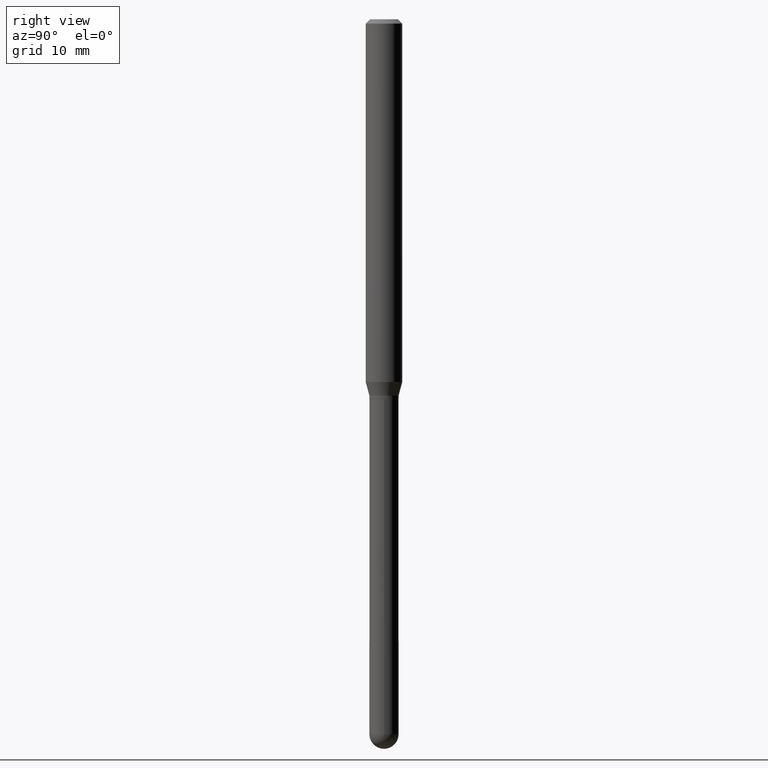
[diagram: clean part render]
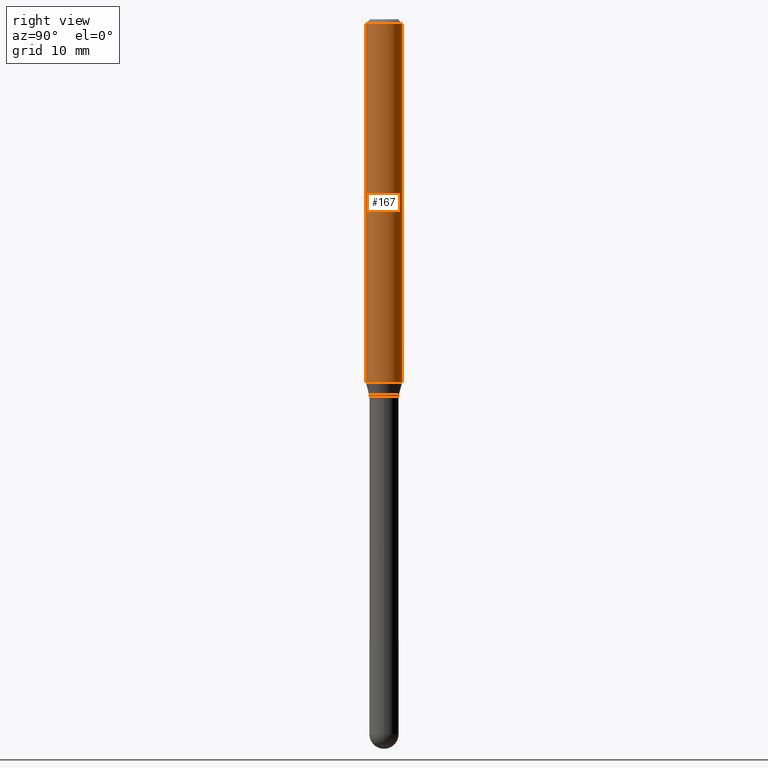
[diagram: same view with one face highlighted and labeled with its STEP entity id]
A machine part, right view. The second image highlights one B-rep face of the part: STEP entity #167.
In plain terms, the highlighted cylindrical surface (edge-blend (fillet) strip) has radius 1.5875 mm, axis along (-0, 0, 1).
Its self-contained STEP definition (entity closure, byte-faithful):
#35 = ORIENTED_EDGE ( 'NONE', *, *, #157, .F. ) ;
#40 = DIRECTION ( 'NONE',  ( -6.982962677686265922E-15, -1.000000000000000000, 4.370956789862821150E-15 ) ) ;
#41 = VERTEX_POINT ( 'NONE', #85 ) ;
#64 = CARTESIAN_POINT ( 'NONE',  ( 3.668314407453261236E-31, -5.237062766148322204E-17, -0.01500000000000000812 ) ) ;
#66 = DIRECTION ( 'NONE',  ( -6.982962677686265922E-15, -1.000000000000000000, 3.491375177432212419E-15 ) ) ;
#69 = ORIENTED_EDGE ( 'NONE', *, *, #76, .T. ) ;
#76 = EDGE_CURVE ( 'NONE', #41, #107, #294, .T. ) ;
#85 = CARTESIAN_POINT ( 'NONE',  ( 4.440892098500930859E-16, 0.06249999999999567707, -1.243349364905388388 ) ) ;
#96 = VECTOR ( 'NONE', #152, 39.37007874015748143 ) ;
#99 = CARTESIAN_POINT ( 'NONE',  ( -4.364351673553610517E-16, -0.06250000000000431599, -1.243349364905387722 ) ) ;
#104 = CARTESIAN_POINT ( 'NONE',  ( -4.364351673553916201E-16, -0.06250000000000000000, 2.182109485895132762E-16 ) ) ;
#107 = VERTEX_POINT ( 'NONE', #247 ) ;
#124 = VECTOR ( 'NONE', #212, 39.37007874015748143 ) ;
#142 = DIRECTION ( 'NONE',  ( -2.445542938302172429E-29, 3.491375177432212419E-15, 1.000000000000000000 ) ) ;
#152 = DIRECTION ( 'NONE',  ( -2.445542938302172429E-29, 3.491375177432212419E-15, 1.000000000000000000 ) ) ;
#157 = EDGE_CURVE ( 'NONE', #160, #402, #183, .T. ) ;
#158 = DIRECTION ( 'NONE',  ( -2.445542938302172429E-29, 3.491375177432212419E-15, 1.000000000000000000 ) ) ;
#160 = VERTEX_POINT ( 'NONE', #99 ) ;
#161 = CIRCLE ( 'NONE', #429, 0.06250000000000000000 ) ;
#167 = ADVANCED_FACE ( 'NONE', ( #192 ), #267, .T. ) ;
#183 = LINE ( 'NONE', #104, #96 ) ;
#192 = FACE_OUTER_BOUND ( 'NONE', #327, .T. ) ;
#204 = DIRECTION ( 'NONE',  ( -6.982962677686265922E-15, -1.000000000000000000, 3.483106191921935554E-15 ) ) ;
#212 = DIRECTION ( 'NONE',  ( -2.445542938302172429E-29, 3.491375177432212419E-15, 1.000000000000000000 ) ) ;
#225 = DIRECTION ( 'NONE',  ( -2.445542938302172429E-29, 3.491375177432212419E-15, 1.000000000000000000 ) ) ;
#232 = AXIS2_PLACEMENT_3D ( 'NONE', #64, #225, #204 ) ;
#247 = CARTESIAN_POINT ( 'NONE',  ( 4.440892098500930859E-16, 0.06249999999999993755, -0.01500000000000022669 ) ) ;
#253 = CIRCLE ( 'NONE', #232, 0.06250000000000000000 ) ;
#267 = CYLINDRICAL_SURFACE ( 'NONE', #275, 0.06250000000000000000 ) ;
#275 = AXIS2_PLACEMENT_3D ( 'NONE', #382, #142, #66 ) ;
#294 = LINE ( 'NONE', #300, #124 ) ;
#297 = EDGE_CURVE ( 'NONE', #402, #107, #253, .T. ) ;
#300 = CARTESIAN_POINT ( 'NONE',  ( 4.440892098500625669E-16, 0.06250000000000000000, -2.182109485895132762E-16 ) ) ;
#327 = EDGE_LOOP ( 'NONE', ( #360, #69, #355, #35 ) ) ;
#355 = ORIENTED_EDGE ( 'NONE', *, *, #297, .F. ) ;
#359 = CARTESIAN_POINT ( 'NONE',  ( -4.364351673553912750E-16, -0.06250000000000005551, -0.01499999999999979128 ) ) ;
#360 = ORIENTED_EDGE ( 'NONE', *, *, #406, .T. ) ;
#364 = CARTESIAN_POINT ( 'NONE',  ( 3.040664259186862585E-29, -4.340999109506777634E-15, -1.243349364905387944 ) ) ;
#382 = CARTESIAN_POINT ( 'NONE',  ( 0.000000000000000000, 0.000000000000000000, 0.000000000000000000 ) ) ;
#402 = VERTEX_POINT ( 'NONE', #359 ) ;
#406 = EDGE_CURVE ( 'NONE', #160, #41, #161, .T. ) ;
#429 = AXIS2_PLACEMENT_3D ( 'NONE', #364, #158, #40 ) ;